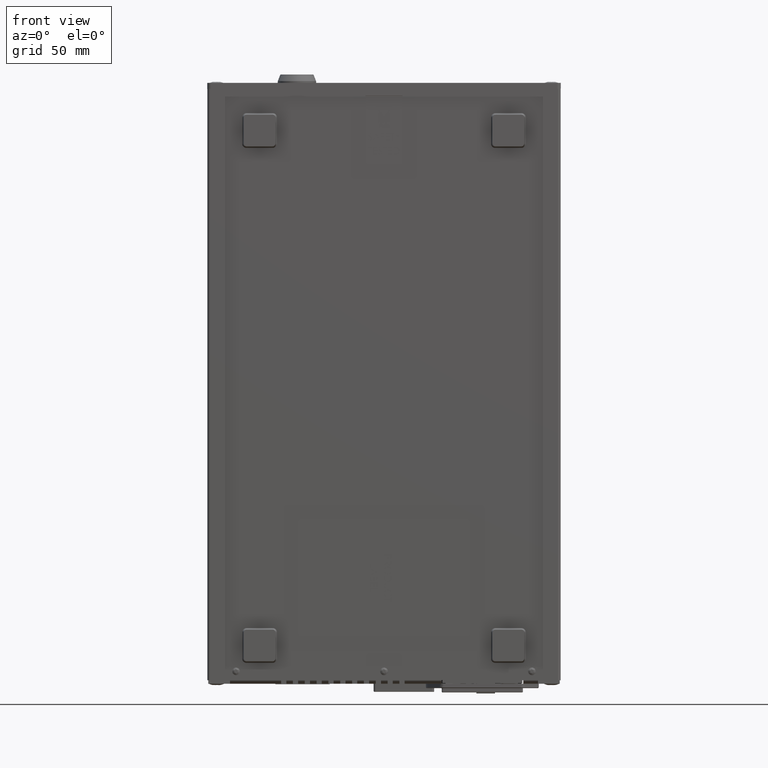
[diagram: clean part render]
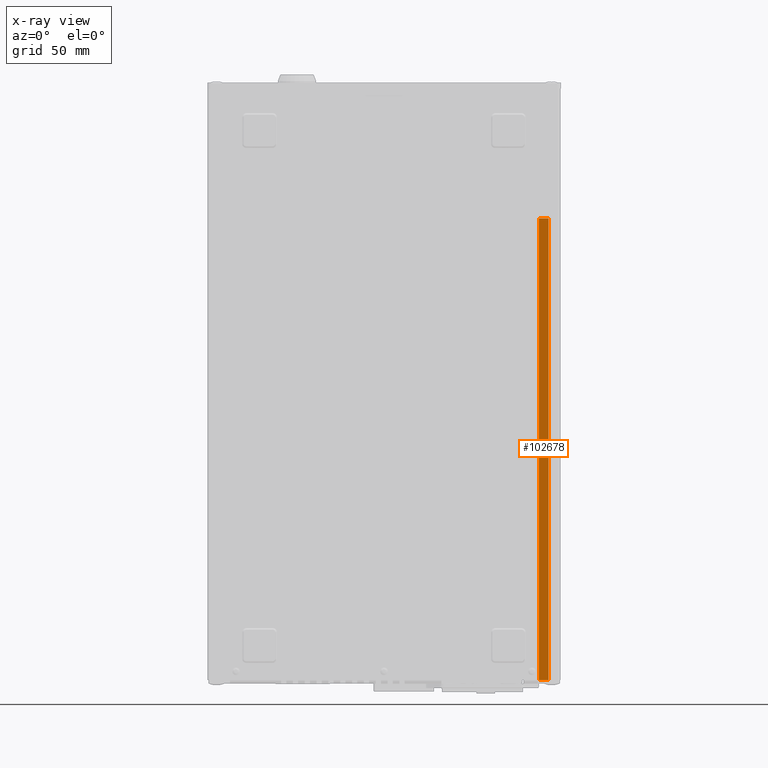
[diagram: x-ray — body ghosted, one internal face saturated and labeled with its STEP entity id]
A machine part, front view, then the same camera in x-ray: the body is ghosted and one INTERNAL B-rep face — a face not visible from any outside direction — is saturated and labeled: STEP entity #102678.
In plain terms, the highlighted planar face has unit normal (0, -1, 0).
Its self-contained STEP definition (entity closure, byte-faithful):
#905 = ORIENTED_EDGE ( 'NONE', *, *, #38267, .T. ) ;
#3445 = CARTESIAN_POINT ( 'NONE',  ( 190.6000000000001400, 16.37000000000002200, -340.0000000000000000 ) ) ;
#4156 = CARTESIAN_POINT ( 'NONE',  ( 190.6000000000000200, 16.37000000000002200, -74.50000000000001400 ) ) ;
#4794 = CARTESIAN_POINT ( 'NONE',  ( 190.6000000000001400, 16.37000000000002200, -340.0000000000000000 ) ) ;
#5807 = CARTESIAN_POINT ( 'NONE',  ( 190.6000000000001400, 16.37000000000002200, -74.50000000000001400 ) ) ;
#6130 = VECTOR ( 'NONE', #86609, 1000.000000000000000 ) ;
#11985 = PLANE ( 'NONE',  #90834 ) ;
#22580 = EDGE_CURVE ( 'NONE', #111146, #87449, #60510, .T. ) ;
#23232 = LINE ( 'NONE', #4794, #64639 ) ;
#25501 = LINE ( 'NONE', #67139, #85948 ) ;
#27465 = CARTESIAN_POINT ( 'NONE',  ( 196.2636931828046400, 16.37000000000002200, -340.0000000000000000 ) ) ;
#32312 = VERTEX_POINT ( 'NONE', #68670 ) ;
#36490 = EDGE_CURVE ( 'NONE', #32312, #111146, #25501, .T. ) ;
#38267 = EDGE_CURVE ( 'NONE', #125853, #32312, #23232, .T. ) ;
#42581 = DIRECTION ( 'NONE',  ( 0.0000000000000000000, -1.000000000000000000, 0.0000000000000000000 ) ) ;
#54660 = EDGE_LOOP ( 'NONE', ( #98259, #84224, #79906, #905 ) ) ;
#60510 = LINE ( 'NONE', #5807, #98605 ) ;
#64639 = VECTOR ( 'NONE', #107041, 1000.000000000000000 ) ;
#67139 = CARTESIAN_POINT ( 'NONE',  ( 190.6000000000001400, 16.37000000000002200, -340.0000000000000000 ) ) ;
#68670 = CARTESIAN_POINT ( 'NONE',  ( 190.6000000000001400, 16.37000000000002200, -340.0000000000000000 ) ) ;
#72100 = CARTESIAN_POINT ( 'NONE',  ( 196.2636931828046400, 16.37000000000002200, -340.0000000000000000 ) ) ;
#74948 = DIRECTION ( 'NONE',  ( 0.0000000000000000000, 0.0000000000000000000, -1.000000000000000000 ) ) ;
#79906 = ORIENTED_EDGE ( 'NONE', *, *, #83362, .F. ) ;
#83362 = EDGE_CURVE ( 'NONE', #125853, #87449, #117512, .T. ) ;
#83371 = CARTESIAN_POINT ( 'NONE',  ( 196.2636931828046400, 16.37000000000002200, -74.50000000000001400 ) ) ;
#84224 = ORIENTED_EDGE ( 'NONE', *, *, #22580, .T. ) ;
#85948 = VECTOR ( 'NONE', #106750, 1000.000000000000000 ) ;
#86609 = DIRECTION ( 'NONE',  ( 0.0000000000000000000, 0.0000000000000000000, 1.000000000000000000 ) ) ;
#87449 = VERTEX_POINT ( 'NONE', #83371 ) ;
#90834 = AXIS2_PLACEMENT_3D ( 'NONE', #3445, #42581, #74948 ) ;
#98259 = ORIENTED_EDGE ( 'NONE', *, *, #36490, .T. ) ;
#98605 = VECTOR ( 'NONE', #106755, 1000.000000000000000 ) ;
#102678 = ADVANCED_FACE ( 'NONE', ( #112247 ), #11985, .F. ) ;
#106750 = DIRECTION ( 'NONE',  ( 0.0000000000000000000, 0.0000000000000000000, 1.000000000000000000 ) ) ;
#106755 = DIRECTION ( 'NONE',  ( 1.000000000000000000, 0.0000000000000000000, 0.0000000000000000000 ) ) ;
#107041 = DIRECTION ( 'NONE',  ( -1.000000000000000000, 0.0000000000000000000, 0.0000000000000000000 ) ) ;
#111146 = VERTEX_POINT ( 'NONE', #4156 ) ;
#112247 = FACE_OUTER_BOUND ( 'NONE', #54660, .T. ) ;
#117512 = LINE ( 'NONE', #27465, #6130 ) ;
#125853 = VERTEX_POINT ( 'NONE', #72100 ) ;